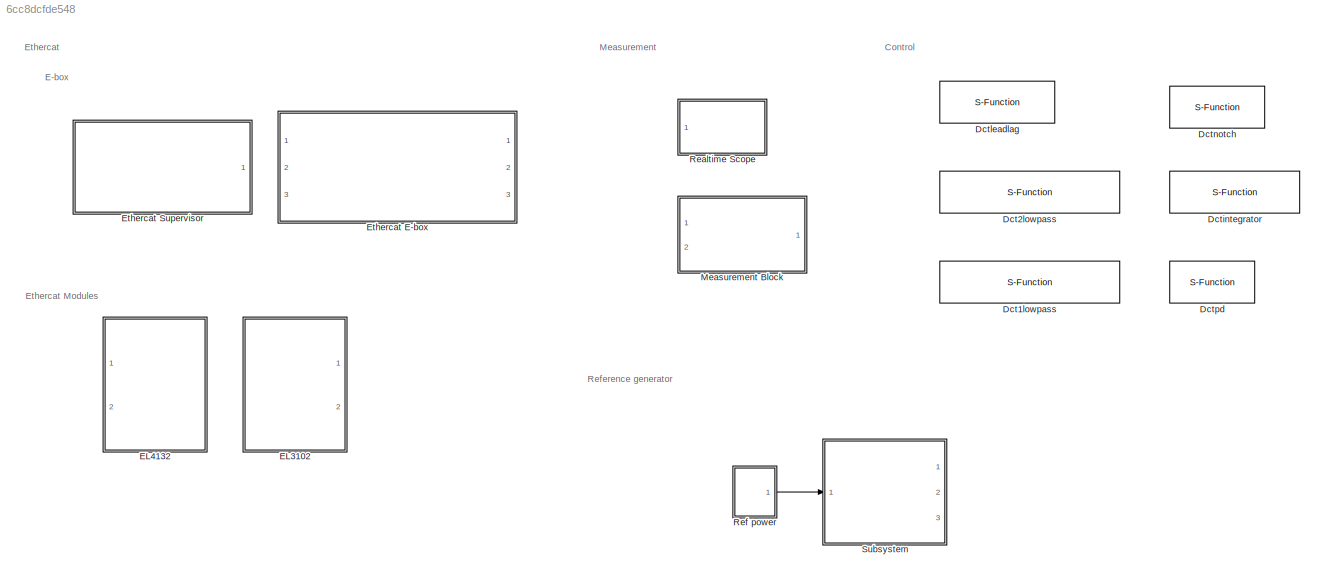
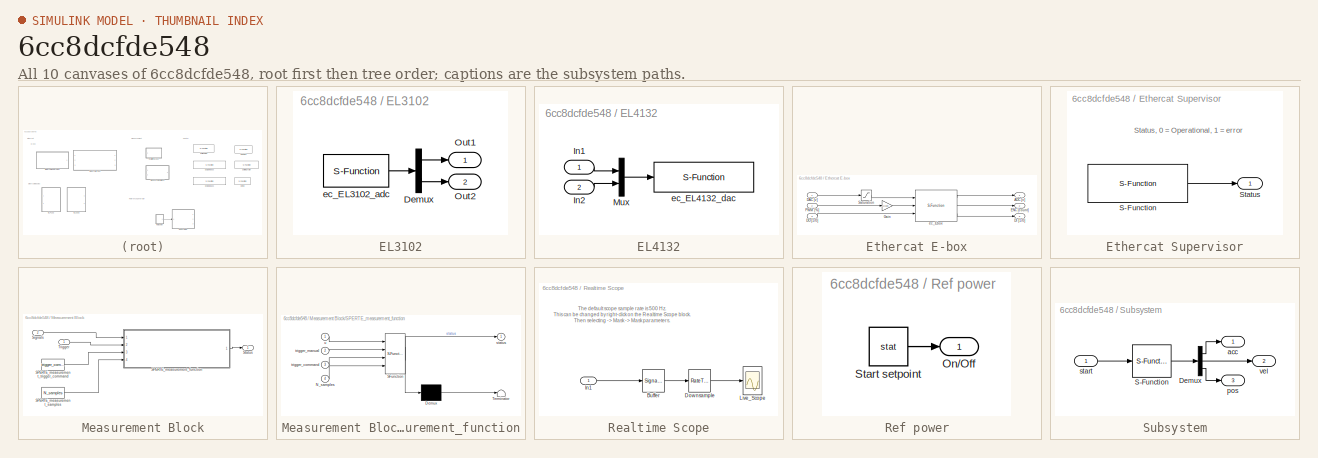
[diagram: thumbnail index - all 10 canvases of the model, root first then tree order]
MODEL slx_6cc8dcfde548
KIND library
CONFIG AbsTol = auto
CONFIG EnableMultiTasking = off
CONFIG FixedStep = auto
CONFIG MaxStep = auto
CONFIG MinStep = auto
CONFIG RelTol = 1e-3
CONFIG SampleTimeConstraint = Unconstrained
CONFIG SolverName = VariableStepAuto
CONFIG StartTime = 0.0
CONFIG StopTime = 10.0
BLOCK [S-Function] Dct1lowpass
  EnableBusSupport = off
  FunctionName = dlowpass1
  Parameters = f_den, 0.001
  Ports = [1, 1]
  SFcnIsStateOwnerBlock = off
  SFunctionDeploymentMode = off
BLOCK [S-Function] Dct2lowpass
  EnableBusSupport = off
  FunctionName = dlowpass2
  Parameters = f_den, b_den, 0.001
  Ports = [1, 1]
  SFcnIsStateOwnerBlock = off
  SFunctionDeploymentMode = off
BLOCK [S-Function] Dctintegrator
  EnableBusSupport = off
  FunctionName = dweakint
  Parameters = f_num, 0.001
  Ports = [1, 1]
  SFcnIsStateOwnerBlock = off
  SFunctionDeploymentMode = off
BLOCK [S-Function] Dctleadlag
  EnableBusSupport = off
  FunctionName = dleadlag
  Parameters = f_num, f_den, 0.001
  Ports = [1, 1]
  SFcnIsStateOwnerBlock = off
  SFunctionDeploymentMode = off
BLOCK [S-Function] Dctnotch
  EnableBusSupport = off
  FunctionName = dnotch
  Parameters = f_num, b_num, f_den, b_den, 0.001
  Ports = [1, 1]
  SFcnIsStateOwnerBlock = off
  SFunctionDeploymentMode = off
BLOCK [S-Function] Dctpd
  EnableBusSupport = off
  FunctionName = dpd
  Parameters = kp, kv, 0.001
  Ports = [1, 1]
  SFcnIsStateOwnerBlock = off
  SFunctionDeploymentMode = off
BLOCK [SubSystem] EL3102
  Ports = [0, 2]
  Priority = -2
  RequestExecContextInheritance = off
BLOCK [Demux] EL3102/Demux
  Outputs = 2
  Ports = [1, 2]
BLOCK [Outport] EL3102/Out1
BLOCK [Outport] EL3102/Out2
  Port = 2
BLOCK [S-Function] EL3102/ec_EL3102_adc
  EnableBusSupport = off
  FunctionName = ec_EL3102_adc
  Parameters = link_id
  Ports = [0, 1]
  SFcnIsStateOwnerBlock = off
  SFunctionDeploymentMode = off
BLOCK [SubSystem] EL4132
  Ports = [2]
  Priority = -2
  RequestExecContextInheritance = off
BLOCK [Inport] EL4132/In1
BLOCK [Inport] EL4132/In2
  Port = 2
BLOCK [Mux] EL4132/Mux
  DisplayOption = bar
  Inputs = 2
  Ports = [2, 1]
BLOCK [S-Function] EL4132/ec_EL4132_dac
  EnableBusSupport = off
  FunctionName = ec_EL4132_dac
  Parameters = link_id
  Ports = [1]
  SFcnIsStateOwnerBlock = off
  SFunctionDeploymentMode = off
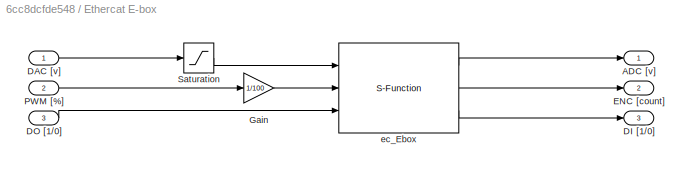
BLOCK [SubSystem] Ethercat E-box
  Ports = [3, 3]
  Priority = -2
  RequestExecContextInheritance = off
  UserDataPersistent = on
BLOCK [Outport] Ethercat E-box/ADC [v]
BLOCK [Inport] Ethercat E-box/DAC [v]
BLOCK [Outport] Ethercat E-box/DI [1//0]
  Port = 3
BLOCK [Inport] Ethercat E-box/DO [1//0]
  Port = 3
BLOCK [Outport] Ethercat E-box/ENC [count]
  Port = 2
BLOCK [Gain] Ethercat E-box/Gain
  Gain = 1/100
BLOCK [Inport] Ethercat E-box/PWM [%]
  Port = 2
BLOCK [Saturate] Ethercat E-box/Saturation
  LowerLimit = -10
  UpperLimit = 10
BLOCK [S-Function] Ethercat E-box/ec_Ebox
  EnableBusSupport = off
  FunctionName = ec_Ebox
  Parameters = link_id
  Ports = [3, 3]
  SFcnIsStateOwnerBlock = off
  SFunctionDeploymentMode = off
BLOCK [SubSystem] Ethercat Supervisor
  Description = Must be executed first, keep at -1 priority (highest)
  Ports = [0, 1]
  Priority = -3
  RequestExecContextInheritance = off
  UserDataPersistent = on
BLOCK [S-Function] Ethercat Supervisor/S-Function
  EnableBusSupport = off
  FunctionName = ec_Supervisor
  Parameters = portid,ectimeout
  Ports = [0, 1]
  SFcnIsStateOwnerBlock = off
  SFunctionDeploymentMode = off
BLOCK [Outport] Ethercat Supervisor/Status
BLOCK [SubSystem] Measurement Block
  Description = Perform on-demand measurements to file using this block.\n\nIt can be used in 2 ways:\n1) Set the mask triggertype parameter to manual and use the trigger input signal to trigger a measurement.\nYou can do this by providing a 0 to 1 transition.\nKeep it low after you start/complete the measurement, or it will measure again.\nA file is created with measurement_0,1,2... etc\n\n2) Keep the model running, and...<+417ch>
  Ports = [2, 1]
  Priority = -1
  RequestExecContextInheritance = off
  UserDataPersistent = on
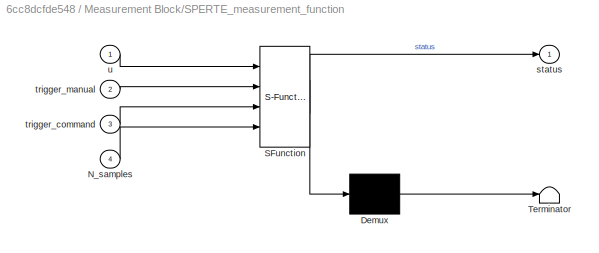
BLOCK [SubSystem] Measurement Block/SPERTE_measurement_function
  ErrorFcn = Stateflow.Translate.translate
  PermitHierarchicalResolution = ExplicitOnly
  Ports = [4, 1]
  RequestExecContextInheritance = off
  SFBlockType = MATLAB Function
  TreatAsAtomicUnit = on
BLOCK [Demux] Measurement Block/SPERTE_measurement_function/ Demux 
  Outputs = 1
  Ports = [1, 1]
BLOCK [S-Function] Measurement Block/SPERTE_measurement_function/ SFunction 
  EnableBusSupport = off
  FunctionName = sf_sfun
  Parameters = triggertype
  PortCounts = [4 2]
  Ports = [4, 2]
  SFcnIsStateOwnerBlock = off
  SFunctionDeploymentMode = off
  Tag = Stateflow S-Function sperte_lib_R2018b_new 1
BLOCK [Terminator] Measurement Block/SPERTE_measurement_function/ Terminator 
BLOCK [Inport] Measurement Block/SPERTE_measurement_function/N_samples
  Port = 4
BLOCK [Outport] Measurement Block/SPERTE_measurement_function/status
BLOCK [Inport] Measurement Block/SPERTE_measurement_function/trigger_command
  Port = 3
BLOCK [Inport] Measurement Block/SPERTE_measurement_function/trigger_manual
  Port = 2
BLOCK [Inport] Measurement Block/SPERTE_measurement_function/u
BLOCK [Constant] Measurement Block/SPERTE_measurement_samples
  OutDataTypeStr = uint32
  Value = N_samples
BLOCK [Constant] Measurement Block/SPERTE_measurement_trigger_command
  OutDataTypeStr = uint8
  Value = trigger_command
BLOCK [Inport] Measurement Block/Signals
  Port = 2
BLOCK [Outport] Measurement Block/Status
BLOCK [Inport] Measurement Block/Trigger
BLOCK [SubSystem] Realtime Scope
  CopyFcn = set_param(gcb,'LinkStatus','None')
  OpenFcn = open_system(strcat(get_param(gcb,'Parent'),'/',get_param(gcb,'Name'),'/Live_Scope'),'force');
  Ports = [1]
  Priority = 0
  RequestExecContextInheritance = off
  UserDataPersistent = on
BLOCK [SignalConversion] Realtime Scope/Buffer
  OverrideOpt = off
BLOCK [RateTransition] Realtime Scope/Downsample
  OutPortSampleTime = Sample_Time
BLOCK [Inport] Realtime Scope/In1
BLOCK [Scope] Realtime Scope/Live_Scope
  Floating = off
  NumInputPorts = 1
  Ports = [1]
  ScopeSpecificationString = Simulink.scopes.TimeScopeBlockCfg('CurrentConfiguration', extmgr.ConfigurationSet(extmgr.Configuration('Core','General UI',true),extmgr.Configuration('Core','Source UI',true),extmgr.Configuration('Sources','WiredSimulink',true),extmgr.Configuration('Visuals','Time Domain',true,'SerializedDisplays',{struct('MinYLimReal','-0.62602','MaxYLimReal','0.62522','YLabelReal','','MinYLimMag','0.00000','MaxY...<+1375ch>
BLOCK [SubSystem] Ref power
  Ports = [0, 1]
  RequestExecContextInheritance = off
BLOCK [Outport] Ref power/On//Off
BLOCK [Constant] Ref power/Start setpoint
  Value = stat
BLOCK [SubSystem] Subsystem
  OpenFcn = global ref_part; cb_axes 1
  Ports = [1, 3]
  RequestExecContextInheritance = off
BLOCK [Demux] Subsystem/Demux
  DisplayOption = none
  Outputs = 3
  Ports = [1, 3]
BLOCK [S-Function] Subsystem/S-Function
  EnableBusSupport = off
  FunctionName = ref3b
  OpenFcn = global ref_part; r3g_main
  Parameters = ref_part
  Ports = [1, 1]
  SFcnIsStateOwnerBlock = off
  SFunctionDeploymentMode = off
BLOCK [Outport] Subsystem/acc
BLOCK [Outport] Subsystem/pos
  Port = 3
BLOCK [Inport] Subsystem/start
BLOCK [Outport] Subsystem/vel
  Port = 2
ANNOTATION (root): E-box
ANNOTATION (root): Control
ANNOTATION (root): Ethercat
ANNOTATION (root): Ethercat Modules
ANNOTATION (root): Measurement
ANNOTATION (root): Reference generator
ANNOTATION Ethercat Supervisor: Status, 0 = Operational, 1 = error
ANNOTATION Realtime Scope: The default scope sample rate is 500 Hz. This can be changed by right-click on the Realtime Scope block. Then selecting -> Mask -> Mask parameters.
LINE EL3102/Demux:1 -> EL3102/Out1:1
LINE EL3102/Demux:2 -> EL3102/Out2:1
LINE EL3102/ec_EL3102_adc:1 -> EL3102/Demux:1
LINE EL4132/In1:1 -> EL4132/Mux:1
LINE EL4132/In2:1 -> EL4132/Mux:2
LINE EL4132/Mux:1 -> EL4132/ec_EL4132_dac:1
LINE Ethercat E-box/DAC [v]:1 -> Ethercat E-box/Saturation:1
LINE Ethercat E-box/DO [1//0]:1 -> Ethercat E-box/ec_Ebox:3
LINE Ethercat E-box/Gain:1 -> Ethercat E-box/ec_Ebox:2
LINE Ethercat E-box/PWM [%]:1 -> Ethercat E-box/Gain:1
LINE Ethercat E-box/Saturation:1 -> Ethercat E-box/ec_Ebox:1
LINE Ethercat E-box/ec_Ebox:1 -> Ethercat E-box/ADC [v]:1
LINE Ethercat E-box/ec_Ebox:2 -> Ethercat E-box/ENC [count]:1
LINE Ethercat E-box/ec_Ebox:3 -> Ethercat E-box/DI [1//0]:1
LINE Ethercat Supervisor/S-Function:1 -> Ethercat Supervisor/Status:1
LINE Measurement Block/SPERTE_measurement_function:1 -> Measurement Block/Status:1
LINE Measurement Block/SPERTE_measurement_samples:1 -> Measurement Block/SPERTE_measurement_function:4
LINE Measurement Block/SPERTE_measurement_trigger_command:1 -> Measurement Block/SPERTE_measurement_function:3
LINE Measurement Block/Signals:1 -> Measurement Block/SPERTE_measurement_function:1
LINE Measurement Block/Trigger:1 -> Measurement Block/SPERTE_measurement_function:2
LINE Realtime Scope/Buffer:1 -> Realtime Scope/Downsample:1
LINE Realtime Scope/Downsample:1 -> Realtime Scope/Live_Scope:1
LINE Realtime Scope/In1:1 -> Realtime Scope/Buffer:1
LINE Ref power/Start setpoint:1 -> Ref power/On//Off:1
LINE Ref power:1 -> Subsystem:1
LINE Subsystem/Demux:1 -> Subsystem/acc:1
LINE Subsystem/Demux:2 -> Subsystem/vel:1
LINE Subsystem/Demux:3 -> Subsystem/pos:1
LINE Subsystem/S-Function:1 -> Subsystem/Demux:1
LINE Subsystem/start:1 -> Subsystem/S-Function:1
CHART Measurement Block/SPERTE_measurement_function states=1 transitions=1
  STATE_LABEL 'eML_blk_kernel()'
  STATE_LABEL 'SCRIPT:\nfunction status = perform_measurement(u, trigger_manual, trigger_command, triggertype, N_samples)\n\n%% Persistent variables\npersistent fileID NF busy NS\n\n% Init parameters\nif isempty(NF)\n    NF = int16(0);\nend\nif isempty(NS)\n    NS = uint32(0);\nend\nif isempty(fileID)\n    fileID = 0;\nend\nif isempty(busy)\n    busy = uint8(0);\nend\n\n%% Check the triggers\nif ( (triggertype == 0 && trigger_manual...<+770ch>'
